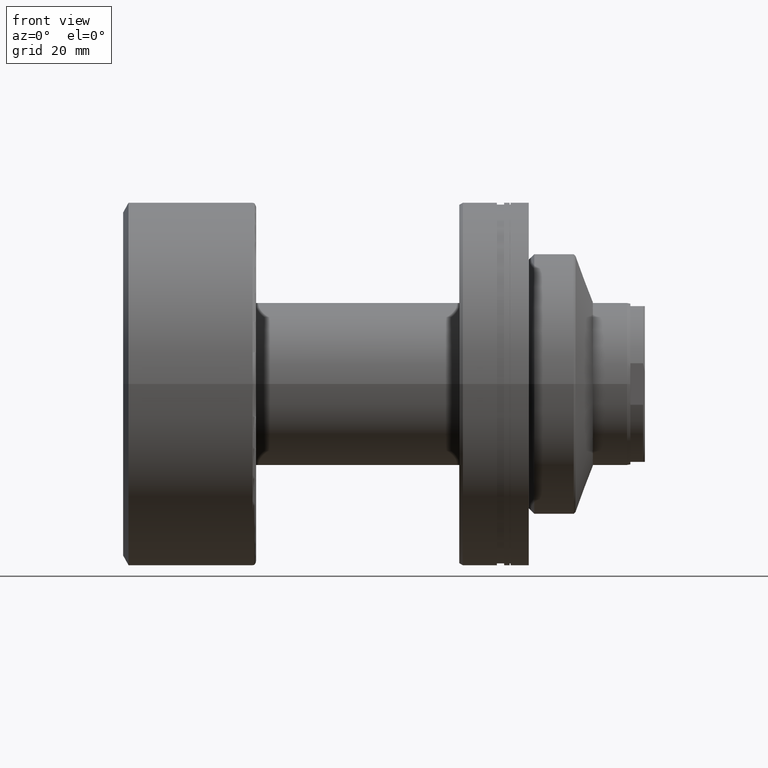
[diagram: clean part render]
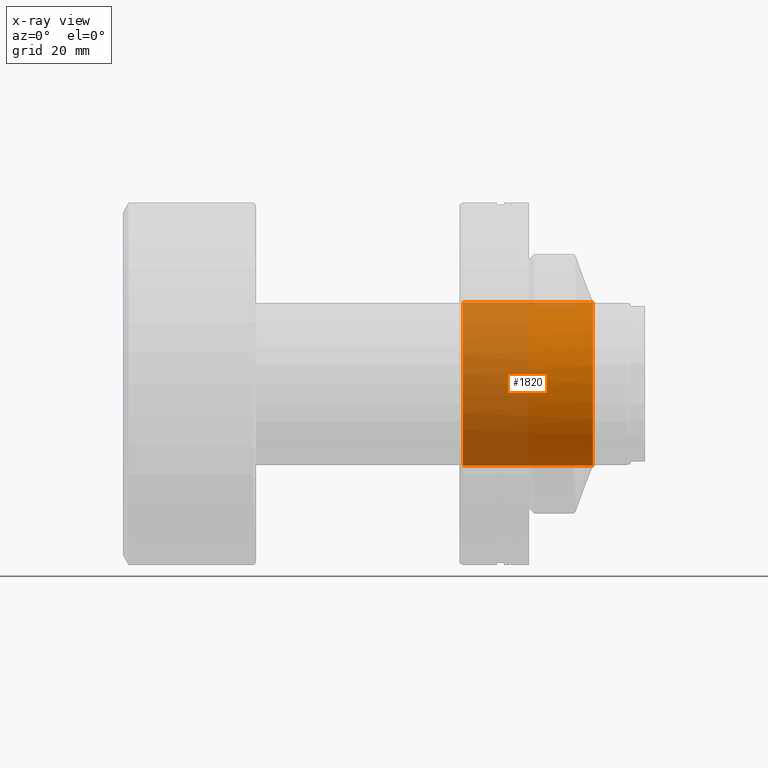
[diagram: x-ray — body ghosted, one internal face saturated and labeled with its STEP entity id]
A machine part, front view, then the same camera in x-ray: the body is ghosted and one INTERNAL B-rep face — a face not visible from any outside direction — is saturated and labeled: STEP entity #1820.
In plain terms, the highlighted cylindrical surface (partial cylindrical patch) has radius 22.5 mm, axis along (1, 0, 0).
Its self-contained STEP definition (entity closure, byte-faithful):
#3 = EDGE_CURVE ( 'NONE', #974, #424, #310, .T. ) ;
#17 = FACE_OUTER_BOUND ( 'NONE', #285, .T. ) ;
#19 = DIRECTION ( 'NONE',  ( 2.312964634635742464E-16, -1.000000000000000000, 0.000000000000000000 ) ) ;
#125 = AXIS2_PLACEMENT_3D ( 'NONE', #1178, #1908, #1380 ) ;
#208 = ORIENTED_EDGE ( 'NONE', *, *, #2087, .F. ) ;
#210 = AXIS2_PLACEMENT_3D ( 'NONE', #1965, #2166, #1983 ) ;
#220 = DIRECTION ( 'NONE',  ( -1.000000000000000000, -2.485414848852932351E-16, 0.000000000000000000 ) ) ;
#244 = CARTESIAN_POINT ( 'NONE',  ( -8.302816901408885286, 5.462247379445728618E-15, 0.000000000000000000 ) ) ;
#285 = EDGE_LOOP ( 'NONE', ( #1170, #292, #780, #2302, #208 ) ) ;
#292 = ORIENTED_EDGE ( 'NONE', *, *, #2254, .T. ) ;
#310 = CIRCLE ( 'NONE', #125, 22.50000000000000355 ) ;
#328 = CARTESIAN_POINT ( 'NONE',  ( -8.302816901408881733, -22.49999999999999645, 0.000000000000000000 ) ) ;
#398 = LINE ( 'NONE', #1847, #733 ) ;
#424 = VERTEX_POINT ( 'NONE', #1961 ) ;
#505 = CIRCLE ( 'NONE', #913, 22.50000000000000355 ) ;
#733 = VECTOR ( 'NONE', #2200, 1000.000000000000000 ) ;
#780 = ORIENTED_EDGE ( 'NONE', *, *, #907, .F. ) ;
#840 = VERTEX_POINT ( 'NONE', #328 ) ;
#907 = EDGE_CURVE ( 'NONE', #840, #1144, #1096, .T. ) ;
#913 = AXIS2_PLACEMENT_3D ( 'NONE', #244, #220, #2215 ) ;
#974 = VERTEX_POINT ( 'NONE', #2155 ) ;
#1096 = CIRCLE ( 'NONE', #1576, 22.50000000000000355 ) ;
#1144 = VERTEX_POINT ( 'NONE', #1626 ) ;
#1170 = ORIENTED_EDGE ( 'NONE', *, *, #3, .T. ) ;
#1178 = CARTESIAN_POINT ( 'NONE',  ( -44.19999999999998863, 0.000000000000000000, 0.000000000000000000 ) ) ;
#1293 = CARTESIAN_POINT ( 'NONE',  ( -8.302816901408885286, 5.462247379445728618E-15, 0.000000000000000000 ) ) ;
#1380 = DIRECTION ( 'NONE',  ( 0.000000000000000000, 0.000000000000000000, -1.000000000000000000 ) ) ;
#1405 = LINE ( 'NONE', #1947, #1886 ) ;
#1423 = VERTEX_POINT ( 'NONE', #2017 ) ;
#1574 = DIRECTION ( 'NONE',  ( 1.000000000000000000, -0.000000000000000000, -0.000000000000000000 ) ) ;
#1576 = AXIS2_PLACEMENT_3D ( 'NONE', #1293, #1829, #19 ) ;
#1605 = CYLINDRICAL_SURFACE ( 'NONE', #210, 22.50000000000000355 ) ;
#1626 = CARTESIAN_POINT ( 'NONE',  ( -8.302816901408885286, 2.755455298081545172E-15, 22.50000000000000355 ) ) ;
#1820 = ADVANCED_FACE ( 'NONE', ( #17 ), #1605, .F. ) ;
#1829 = DIRECTION ( 'NONE',  ( -1.000000000000000000, -2.485414848852932351E-16, 0.000000000000000000 ) ) ;
#1847 = CARTESIAN_POINT ( 'NONE',  ( -108.8396103067892966, 2.755455298081545172E-15, 22.50000000000000355 ) ) ;
#1886 = VECTOR ( 'NONE', #1574, 1000.000000000000000 ) ;
#1908 = DIRECTION ( 'NONE',  ( -1.000000000000000000, 0.000000000000000000, 0.000000000000000000 ) ) ;
#1911 = EDGE_CURVE ( 'NONE', #1423, #840, #505, .T. ) ;
#1947 = CARTESIAN_POINT ( 'NONE',  ( -108.8396103067892966, 0.000000000000000000, -22.50000000000000355 ) ) ;
#1961 = CARTESIAN_POINT ( 'NONE',  ( -44.19999999999998863, 2.755455298081545172E-15, 22.50000000000000355 ) ) ;
#1965 = CARTESIAN_POINT ( 'NONE',  ( -108.8396103067892966, 0.000000000000000000, 0.000000000000000000 ) ) ;
#1983 = DIRECTION ( 'NONE',  ( 0.000000000000000000, 0.000000000000000000, -1.000000000000000000 ) ) ;
#2017 = CARTESIAN_POINT ( 'NONE',  ( -8.302816901408885286, 0.000000000000000000, -22.50000000000000355 ) ) ;
#2087 = EDGE_CURVE ( 'NONE', #974, #1423, #1405, .T. ) ;
#2155 = CARTESIAN_POINT ( 'NONE',  ( -44.19999999999998863, 0.000000000000000000, -22.50000000000000355 ) ) ;
#2166 = DIRECTION ( 'NONE',  ( 1.000000000000000000, -0.000000000000000000, -0.000000000000000000 ) ) ;
#2200 = DIRECTION ( 'NONE',  ( 1.000000000000000000, -0.000000000000000000, -0.000000000000000000 ) ) ;
#2215 = DIRECTION ( 'NONE',  ( 2.312964634635742464E-16, -1.000000000000000000, 0.000000000000000000 ) ) ;
#2254 = EDGE_CURVE ( 'NONE', #424, #1144, #398, .T. ) ;
#2302 = ORIENTED_EDGE ( 'NONE', *, *, #1911, .F. ) ;